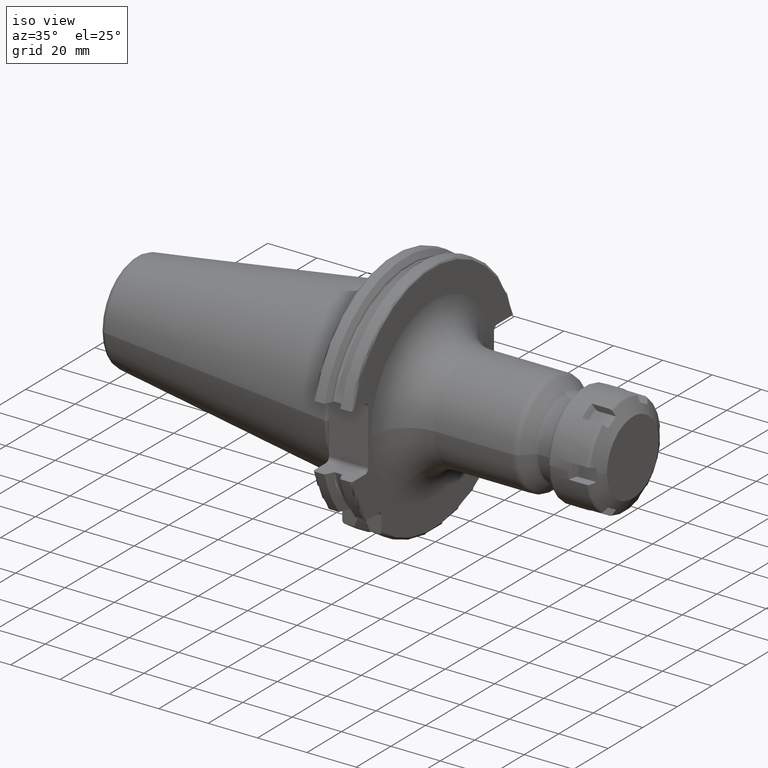
[diagram: clean part render]
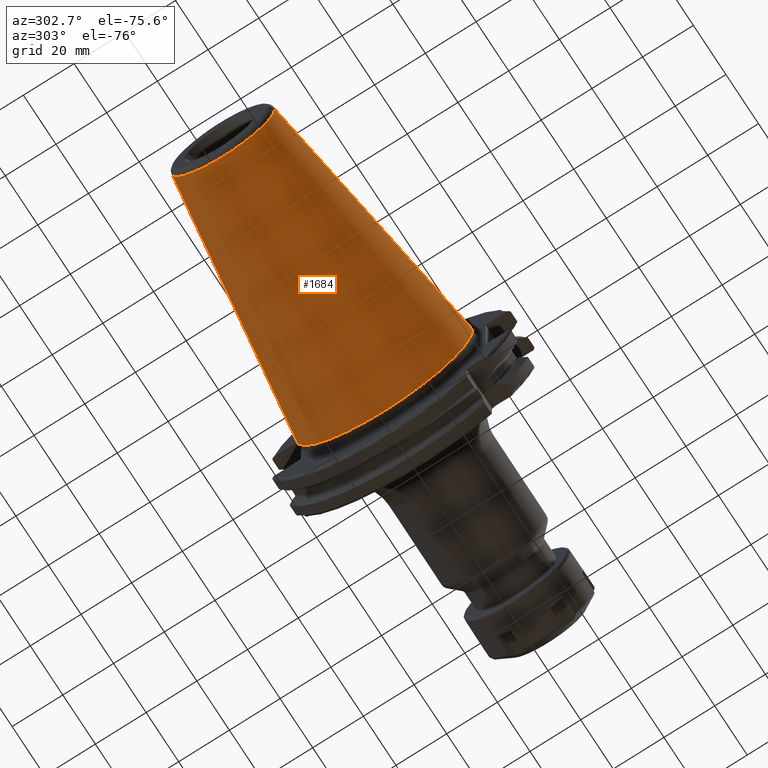
[diagram: tour spotlight — one face highlighted and labeled with its STEP entity id]
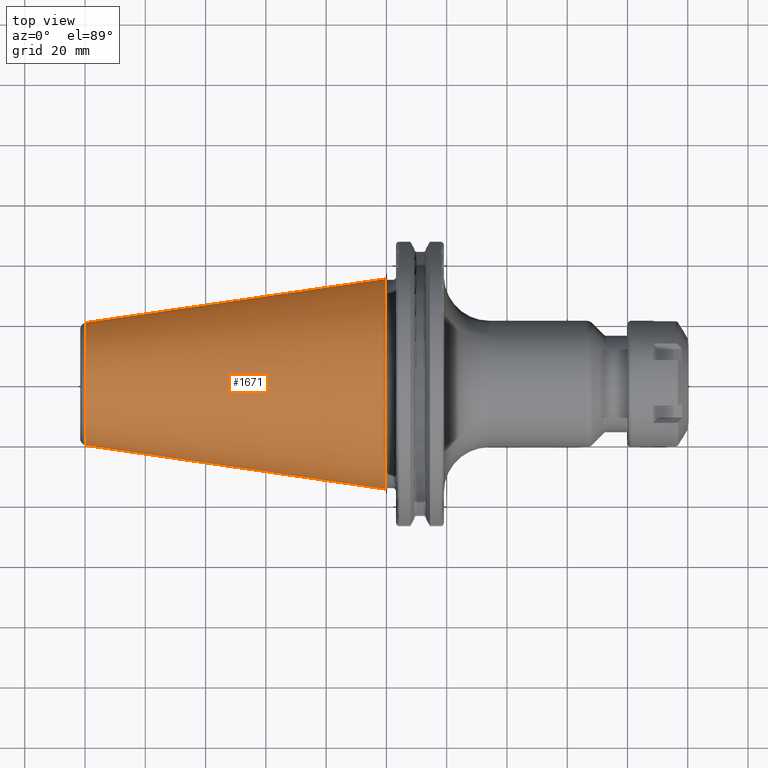
[diagram: tour spotlight — one face highlighted and labeled with its STEP entity id]
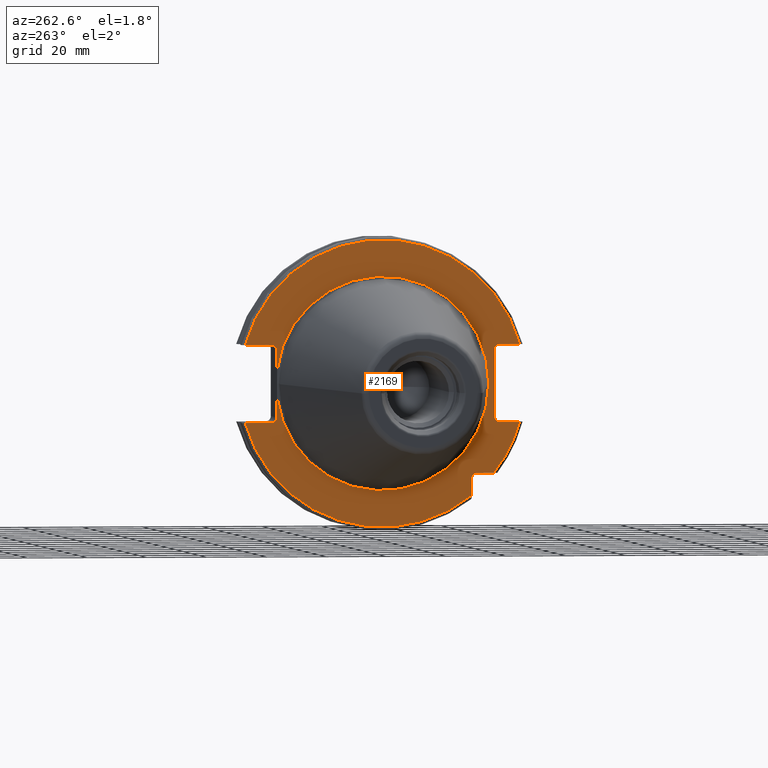
[diagram: tour spotlight — one face highlighted and labeled with its STEP entity id]
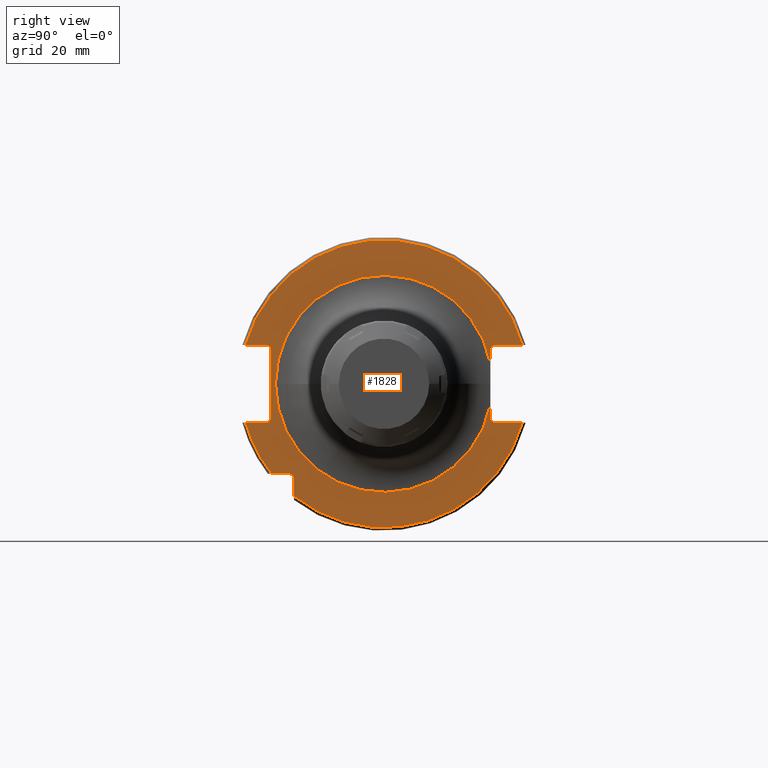
[diagram: tour spotlight — one face highlighted and labeled with its STEP entity id]
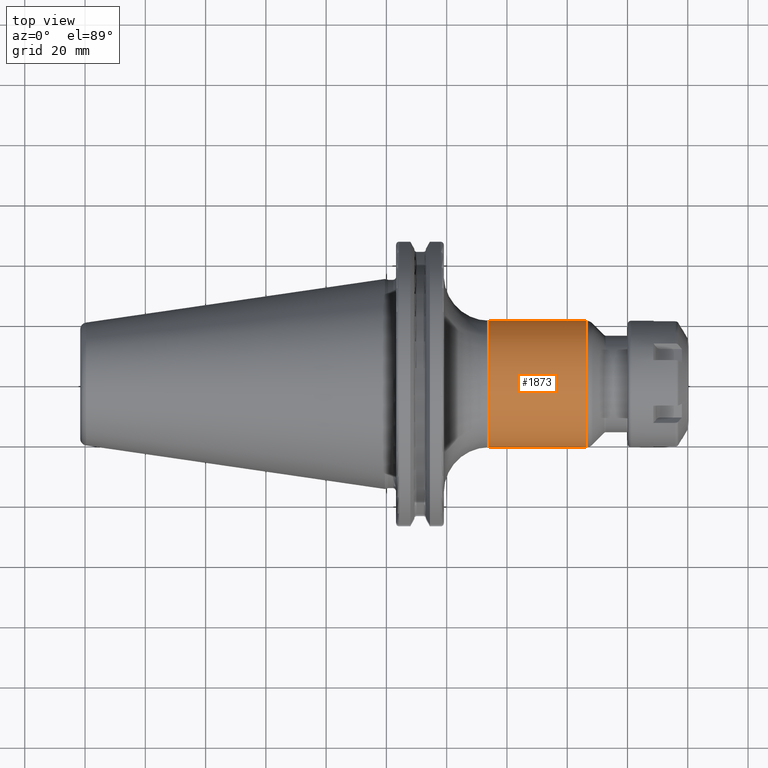
[diagram: tour spotlight — one face highlighted and labeled with its STEP entity id]
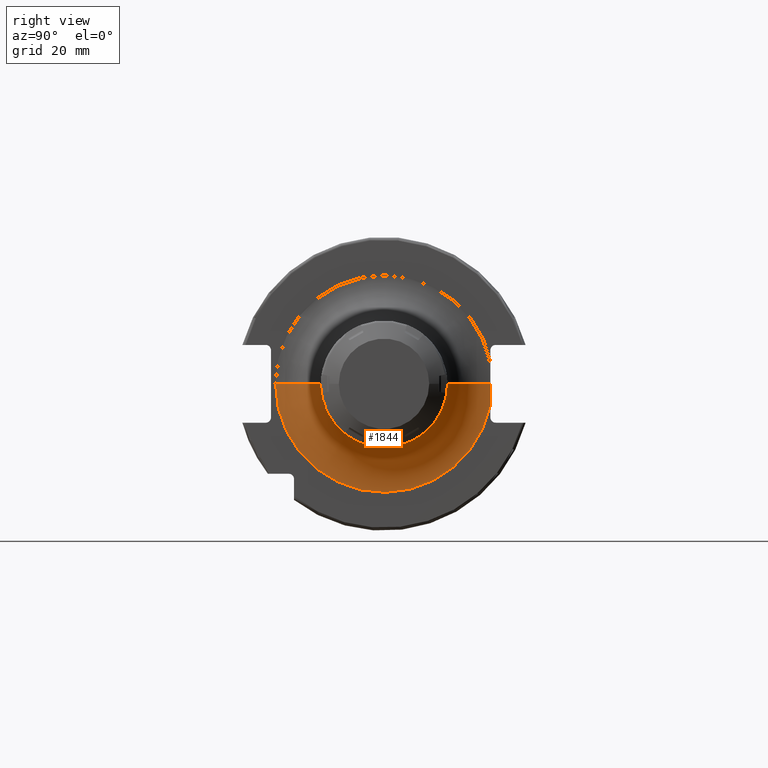
[diagram: tour spotlight — one face highlighted and labeled with its STEP entity id]
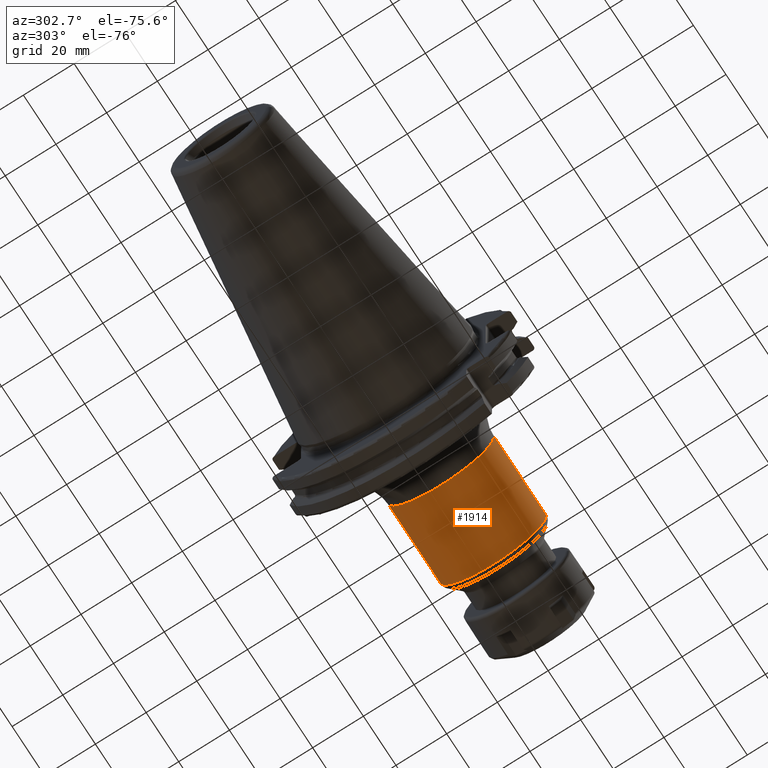
[diagram: tour spotlight — one face highlighted and labeled with its STEP entity id]
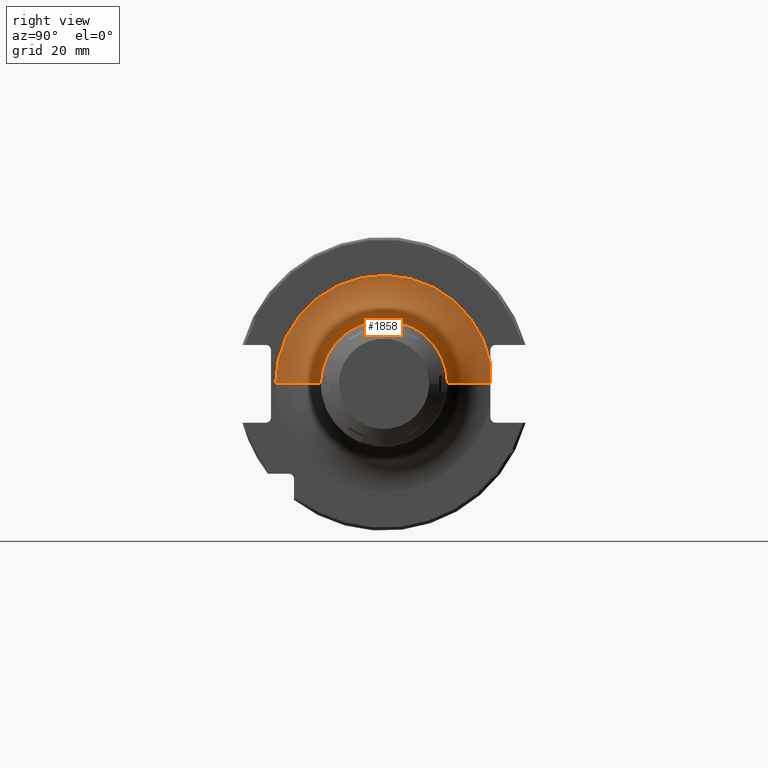
[diagram: tour spotlight — one face highlighted and labeled with its STEP entity id]
A machine part: a face-by-face anatomy tour. The part has 147 B-rep faces; the first image is the clean iso view, then the 8 largest visible faces are spotlighted one at a time (largest first), each with its STEP entity span.

Face 1 — auxiliary view, entity #1684. In plain terms, the highlighted conical surface has half-angle 8.298 deg.
Definition (entity closure, byte-faithful):
#32=CARTESIAN_POINT('',(-9.967471700563E1,0.E0,0.E0));
#33=DIRECTION('',(-1.E0,0.E0,0.E0));
#34=DIRECTION('',(0.E0,1.E0,0.E0));
#35=AXIS2_PLACEMENT_3D('',#32,#33,#34);
#47=DIRECTION('',(-9.895312636440E-1,-1.443186691705E-1,0.E0));
#48=VECTOR('',#47,1.002343617797E2);
#49=CARTESIAN_POINT('',(-4.896823332305E-1,3.485358204157E1,0.E0));
#50=LINE('',#49,#48);
#51=DIRECTION('',(-9.895312636440E-1,1.443186691705E-1,0.E0));
#52=VECTOR('',#51,1.002343617797E2);
#53=CARTESIAN_POINT('',(-4.896823332305E-1,-3.485358204157E1,0.E0));
#54=LINE('',#53,#52);
#55=CARTESIAN_POINT('',(-4.896823332305E-1,0.E0,0.E0));
#56=DIRECTION('',(-1.E0,0.E0,0.E0));
#57=DIRECTION('',(0.E0,1.E0,0.E0));
#58=AXIS2_PLACEMENT_3D('',#55,#56,#57);
#1336=CARTESIAN_POINT('',(-9.967471700563E1,2.038789234437E1,0.E0));
#1338=VERTEX_POINT('',#1336);
#1340=CARTESIAN_POINT('',(-9.967471700563E1,-2.038789234437E1,0.E0));
#1342=VERTEX_POINT('',#1340);
#1404=CARTESIAN_POINT('',(-4.896823332305E-1,3.485358204157E1,0.E0));
#1405=VERTEX_POINT('',#1404);
#1406=CARTESIAN_POINT('',(-4.896823332305E-1,-3.485358204157E1,0.E0));
#1407=VERTEX_POINT('',#1406);
#1672=CARTESIAN_POINT('',(-5.008219966943E1,0.E0,0.E0));
#1673=DIRECTION('',(1.E0,0.E0,0.E0));
#1674=DIRECTION('',(0.E0,-1.E0,0.E0));
#1675=AXIS2_PLACEMENT_3D('',#1672,#1673,#1674);
#1676=CONICAL_SURFACE('',#1675,2.762073719297E1,8.297826828206E0);
#1677=ORIENTED_EDGE('',*,*,#1662,.T.);
#1678=ORIENTED_EDGE('',*,*,#1639,.T.);
#1679=ORIENTED_EDGE('',*,*,#1666,.F.);
#1681=ORIENTED_EDGE('',*,*,#1680,.F.);
#1682=EDGE_LOOP('',(#1677,#1678,#1679,#1681));
#1683=FACE_OUTER_BOUND('',#1682,.F.);
#1684=ADVANCED_FACE('',(#1683),#1676,.T.);
#36=CIRCLE('',#35,2.038789234437E1);
#59=CIRCLE('',#58,3.485358204157E1);
#1639=EDGE_CURVE('',#1338,#1342,#36,.T.);
#1662=EDGE_CURVE('',#1405,#1338,#50,.T.);
#1666=EDGE_CURVE('',#1407,#1342,#54,.T.);
#1680=EDGE_CURVE('',#1405,#1407,#59,.T.);

Face 2 — top view, entity #1671. In plain terms, the highlighted conical surface has half-angle 8.298 deg.
Definition (entity closure, byte-faithful):
#37=CARTESIAN_POINT('',(-9.967471700563E1,0.E0,0.E0));
#38=DIRECTION('',(1.E0,0.E0,0.E0));
#39=DIRECTION('',(0.E0,1.E0,0.E0));
#40=AXIS2_PLACEMENT_3D('',#37,#38,#39);
#42=CARTESIAN_POINT('',(-4.896823332305E-1,0.E0,0.E0));
#43=DIRECTION('',(1.E0,0.E0,0.E0));
#44=DIRECTION('',(0.E0,1.E0,0.E0));
#45=AXIS2_PLACEMENT_3D('',#42,#43,#44);
#47=DIRECTION('',(-9.895312636440E-1,-1.443186691705E-1,0.E0));
#48=VECTOR('',#47,1.002343617797E2);
#49=CARTESIAN_POINT('',(-4.896823332305E-1,3.485358204157E1,0.E0));
#50=LINE('',#49,#48);
#51=DIRECTION('',(-9.895312636440E-1,1.443186691705E-1,0.E0));
#52=VECTOR('',#51,1.002343617797E2);
#53=CARTESIAN_POINT('',(-4.896823332305E-1,-3.485358204157E1,0.E0));
#54=LINE('',#53,#52);
#1336=CARTESIAN_POINT('',(-9.967471700563E1,2.038789234437E1,0.E0));
#1338=VERTEX_POINT('',#1336);
#1340=CARTESIAN_POINT('',(-9.967471700563E1,-2.038789234437E1,0.E0));
#1342=VERTEX_POINT('',#1340);
#1404=CARTESIAN_POINT('',(-4.896823332305E-1,3.485358204157E1,0.E0));
#1405=VERTEX_POINT('',#1404);
#1406=CARTESIAN_POINT('',(-4.896823332305E-1,-3.485358204157E1,0.E0));
#1407=VERTEX_POINT('',#1406);
#1657=CARTESIAN_POINT('',(-5.008219966943E1,0.E0,0.E0));
#1658=DIRECTION('',(1.E0,0.E0,0.E0));
#1659=DIRECTION('',(0.E0,-1.E0,0.E0));
#1660=AXIS2_PLACEMENT_3D('',#1657,#1658,#1659);
#1661=CONICAL_SURFACE('',#1660,2.762073719297E1,8.297826828206E0);
#1663=ORIENTED_EDGE('',*,*,#1662,.F.);
#1665=ORIENTED_EDGE('',*,*,#1664,.T.);
#1667=ORIENTED_EDGE('',*,*,#1666,.T.);
#1668=ORIENTED_EDGE('',*,*,#1650,.F.);
#1669=EDGE_LOOP('',(#1663,#1665,#1667,#1668));
#1670=FACE_OUTER_BOUND('',#1669,.F.);
#1671=ADVANCED_FACE('',(#1670),#1661,.T.);
#41=CIRCLE('',#40,2.038789234437E1);
#46=CIRCLE('',#45,3.485358204157E1);
#1650=EDGE_CURVE('',#1338,#1342,#41,.T.);
#1662=EDGE_CURVE('',#1405,#1338,#50,.T.);
#1664=EDGE_CURVE('',#1405,#1407,#46,.T.);
#1666=EDGE_CURVE('',#1407,#1342,#54,.T.);

Face 3 — auxiliary view, entity #2169. In plain terms, the highlighted planar face has unit normal (1, 0, 0).
Definition (entity closure, byte-faithful):
#105=CARTESIAN_POINT('',(3.2E0,3.53E1,-4.414818795828E0));
#117=CARTESIAN_POINT('',(3.2E0,0.E0,0.E0));
#118=DIRECTION('',(-1.E0,0.E0,0.E0));
#119=DIRECTION('',(0.E0,9.922698524245E-1,-1.240989120402E-1));
#120=AXIS2_PLACEMENT_3D('',#117,#118,#119);
#355=CARTESIAN_POINT('',(3.2E0,3.705E1,-1.115E1));
#356=DIRECTION('',(1.E0,0.E0,0.E0));
#357=DIRECTION('',(0.E0,-1.E0,0.E0));
#358=AXIS2_PLACEMENT_3D('',#355,#356,#357);
#364=DIRECTION('',(0.E0,1.E0,0.E0));
#365=VECTOR('',#364,6.711493733886E0);
#366=CARTESIAN_POINT('',(3.2E0,-4.596149373389E1,1.29E1));
#367=LINE('',#366,#365);
#368=DIRECTION('',(0.E0,0.E0,1.E0));
#369=VECTOR('',#368,2.23E1);
#370=CARTESIAN_POINT('',(3.2E0,-3.75E1,-1.115E1));
#371=LINE('',#370,#369);
#372=DIRECTION('',(0.E0,1.E0,0.E0));
#373=VECTOR('',#372,6.711493733886E0);
#374=CARTESIAN_POINT('',(3.2E0,-4.596149373389E1,-1.29E1));
#375=LINE('',#374,#373);
#376=CARTESIAN_POINT('',(3.2E0,0.E0,0.E0));
#377=DIRECTION('',(-1.E0,0.E0,0.E0));
#378=DIRECTION('',(0.E0,-7.803888060170E-1,-6.252945797329E-1));
#379=AXIS2_PLACEMENT_3D('',#376,#377,#378);
#381=DIRECTION('',(0.E0,-1.E0,0.E0));
#382=VECTOR('',#381,5.653810627237E0);
#383=CARTESIAN_POINT('',(3.2E0,-3.16E1,-2.985E1));
#384=LINE('',#383,#382);
#385=DIRECTION('',(0.E0,0.E0,1.E0));
#386=VECTOR('',#385,5.653810627237E0);
#387=CARTESIAN_POINT('',(3.2E0,-2.985E1,-3.725381062724E1));
#388=LINE('',#387,#386);
#389=CARTESIAN_POINT('',(3.2E0,0.E0,0.E0));
#390=DIRECTION('',(-1.E0,0.E0,0.E0));
#391=DIRECTION('',(0.E0,9.627964123359E-1,-2.702278083268E-1));
#392=AXIS2_PLACEMENT_3D('',#389,#390,#391);
#394=DIRECTION('',(0.E0,-1.E0,0.E0));
#395=VECTOR('',#394,8.911493733886E0);
#396=CARTESIAN_POINT('',(3.2E0,4.596149373389E1,-1.29E1));
#397=LINE('',#396,#395);
#398=DIRECTION('',(0.E0,0.E0,-1.E0));
#399=VECTOR('',#398,6.735181204172E0);
#400=CARTESIAN_POINT('',(3.2E0,3.53E1,-4.414818795828E0));
#401=LINE('',#400,#399);
#402=DIRECTION('',(0.E0,0.E0,-1.E0));
#403=VECTOR('',#402,6.735181204172E0);
#404=CARTESIAN_POINT('',(3.2E0,3.53E1,1.115E1));
#405=LINE('',#404,#403);
#406=DIRECTION('',(0.E0,-1.E0,0.E0));
#407=VECTOR('',#406,8.911493733886E0);
#408=CARTESIAN_POINT('',(3.2E0,4.596149373389E1,1.29E1));
#409=LINE('',#408,#407);
#410=CARTESIAN_POINT('',(3.2E0,0.E0,0.E0));
#411=DIRECTION('',(1.E0,0.E0,0.E0));
#412=DIRECTION('',(0.E0,9.627964123359E-1,2.702278083268E-1));
#413=AXIS2_PLACEMENT_3D('',#410,#411,#412);
#424=CARTESIAN_POINT('',(3.2E0,-3.925E1,1.115E1));
#425=DIRECTION('',(1.E0,0.E0,0.E0));
#426=DIRECTION('',(0.E0,1.E0,0.E0));
#427=AXIS2_PLACEMENT_3D('',#424,#425,#426);
#442=CARTESIAN_POINT('',(3.2E0,-3.925E1,-1.115E1));
#443=DIRECTION('',(1.E0,0.E0,0.E0));
#444=DIRECTION('',(0.E0,0.E0,-1.E0));
#445=AXIS2_PLACEMENT_3D('',#442,#443,#444);
#566=CARTESIAN_POINT('',(3.2E0,4.596149373389E1,-1.29E1));
#601=CARTESIAN_POINT('',(3.2E0,-4.596149373389E1,-1.29E1));
#608=CARTESIAN_POINT('',(3.2E0,-3.725381062724E1,-2.985E1));
#628=CARTESIAN_POINT('',(3.2E0,-3.16E1,-3.16E1));
#629=DIRECTION('',(1.E0,0.E0,0.E0));
#630=DIRECTION('',(0.E0,1.E0,0.E0));
#631=AXIS2_PLACEMENT_3D('',#628,#629,#630);
#713=CARTESIAN_POINT('',(3.2E0,3.705E1,1.115E1));
#714=DIRECTION('',(1.E0,0.E0,0.E0));
#715=DIRECTION('',(0.E0,0.E0,1.E0));
#716=AXIS2_PLACEMENT_3D('',#713,#714,#715);
#799=CARTESIAN_POINT('',(3.2E0,4.596149373389E1,1.29E1));
#806=CARTESIAN_POINT('',(3.2E0,-4.596149373389E1,1.29E1));
#1114=CARTESIAN_POINT('',(3.2E0,3.53E1,4.414818795828E0));
#1125=CARTESIAN_POINT('',(3.2E0,0.E0,0.E0));
#1126=DIRECTION('',(1.E0,0.E0,0.E0));
#1127=DIRECTION('',(0.E0,9.922698524245E-1,1.240989120402E-1));
#1128=AXIS2_PLACEMENT_3D('',#1125,#1126,#1127);
#1348=CARTESIAN_POINT('',(3.2E0,-3.5575E1,0.E0));
#1350=VERTEX_POINT('',#1348);
#1474=VERTEX_POINT('',#1114);
#1476=VERTEX_POINT('',#105);
#1479=VERTEX_POINT('',#799);
#1480=VERTEX_POINT('',#806);
#1483=VERTEX_POINT('',#566);
#1484=VERTEX_POINT('',#601);
#1507=CARTESIAN_POINT('',(3.2E0,-2.985E1,-3.725381062724E1));
#1508=VERTEX_POINT('',#1507);
#1510=CARTESIAN_POINT('',(3.2E0,-3.75E1,-1.115E1));
#1512=VERTEX_POINT('',#1510);
#1514=CARTESIAN_POINT('',(3.2E0,-3.925E1,-1.29E1));
#1516=VERTEX_POINT('',#1514);
#1518=CARTESIAN_POINT('',(3.2E0,-3.925E1,1.29E1));
#1520=VERTEX_POINT('',#1518);
#1522=CARTESIAN_POINT('',(3.2E0,-3.75E1,1.115E1));
#1524=VERTEX_POINT('',#1522);
#1526=CARTESIAN_POINT('',(3.2E0,3.53E1,1.115E1));
#1528=VERTEX_POINT('',#1526);
#1530=CARTESIAN_POINT('',(3.2E0,3.705E1,1.29E1));
#1532=VERTEX_POINT('',#1530);
#1534=CARTESIAN_POINT('',(3.2E0,3.705E1,-1.29E1));
#1536=VERTEX_POINT('',#1534);
#1538=CARTESIAN_POINT('',(3.2E0,3.53E1,-1.115E1));
#1540=VERTEX_POINT('',#1538);
#1545=CARTESIAN_POINT('',(3.2E0,-2.985E1,-3.16E1));
#1546=CARTESIAN_POINT('',(3.2E0,-3.16E1,-2.985E1));
#1547=VERTEX_POINT('',#1545);
#1548=VERTEX_POINT('',#1546);
#1610=VERTEX_POINT('',#608);
#2129=CARTESIAN_POINT('',(3.2E0,0.E0,0.E0));
#2130=DIRECTION('',(1.E0,0.E0,0.E0));
#2131=DIRECTION('',(0.E0,-1.E0,0.E0));
#2132=AXIS2_PLACEMENT_3D('',#2129,#2130,#2131);
#2133=PLANE('',#2132);
#2135=ORIENTED_EDGE('',*,*,#2134,.T.);
#2137=ORIENTED_EDGE('',*,*,#2136,.F.);
#2139=ORIENTED_EDGE('',*,*,#2138,.F.);
#2141=ORIENTED_EDGE('',*,*,#2140,.F.);
#2143=ORIENTED_EDGE('',*,*,#2142,.F.);
#2145=ORIENTED_EDGE('',*,*,#2144,.F.);
#2147=ORIENTED_EDGE('',*,*,#2146,.F.);
#2149=ORIENTED_EDGE('',*,*,#2148,.F.);
#2151=ORIENTED_EDGE('',*,*,#2150,.F.);
#2153=ORIENTED_EDGE('',*,*,#2152,.F.);
#2154=ORIENTED_EDGE('',*,*,#2101,.T.);
#2155=ORIENTED_EDGE('',*,*,#2090,.F.);
#2156=ORIENTED_EDGE('',*,*,#1778,.F.);
#2157=ORIENTED_EDGE('',*,*,#1753,.T.);
#2159=ORIENTED_EDGE('',*,*,#2158,.F.);
#2160=ORIENTED_EDGE('',*,*,#1773,.F.);
#2162=ORIENTED_EDGE('',*,*,#2161,.F.);
#2164=ORIENTED_EDGE('',*,*,#2163,.F.);
#2166=ORIENTED_EDGE('',*,*,#2165,.T.);
#2167=EDGE_LOOP('',(#2135,#2137,#2139,#2141,#2143,#2145,#2147,#2149,#2151,#2153,
#2154,#2155,#2156,#2157,#2159,#2160,#2162,#2164,#2166));
#2168=FACE_OUTER_BOUND('',#2167,.F.);
#2169=ADVANCED_FACE('',(#2168),#2133,.F.);
#121=CIRCLE('',#120,3.5575E1);
#359=CIRCLE('',#358,1.75E0);
#380=CIRCLE('',#379,4.77375E1);
#393=CIRCLE('',#392,4.77375E1);
#414=CIRCLE('',#413,4.77375E1);
#428=CIRCLE('',#427,1.75E0);
#446=CIRCLE('',#445,1.75E0);
#632=CIRCLE('',#631,1.75E0);
#717=CIRCLE('',#716,1.75E0);
#1129=CIRCLE('',#1128,3.5575E1);
#1753=EDGE_CURVE('',#1476,#1350,#121,.T.);
#1773=EDGE_CURVE('',#1528,#1474,#405,.T.);
#1778=EDGE_CURVE('',#1476,#1540,#401,.T.);
#2090=EDGE_CURVE('',#1540,#1536,#359,.T.);
#2101=EDGE_CURVE('',#1483,#1536,#397,.T.);
#2134=EDGE_CURVE('',#1480,#1520,#367,.T.);
#2136=EDGE_CURVE('',#1524,#1520,#428,.T.);
#2138=EDGE_CURVE('',#1512,#1524,#371,.T.);
#2140=EDGE_CURVE('',#1516,#1512,#446,.T.);
#2142=EDGE_CURVE('',#1484,#1516,#375,.T.);
#2144=EDGE_CURVE('',#1610,#1484,#380,.T.);
#2146=EDGE_CURVE('',#1548,#1610,#384,.T.);
#2148=EDGE_CURVE('',#1547,#1548,#632,.T.);
#2150=EDGE_CURVE('',#1508,#1547,#388,.T.);
#2152=EDGE_CURVE('',#1483,#1508,#393,.T.);
#2158=EDGE_CURVE('',#1474,#1350,#1129,.T.);
#2161=EDGE_CURVE('',#1532,#1528,#717,.T.);
#2163=EDGE_CURVE('',#1479,#1532,#409,.T.);
#2165=EDGE_CURVE('',#1479,#1480,#414,.T.);

Face 4 — right view, entity #1828. In plain terms, the highlighted planar face has unit normal (1, 0, 0).
Definition (entity closure, byte-faithful):
#130=CARTESIAN_POINT('',(1.905E1,0.E0,0.E0));
#131=DIRECTION('',(1.E0,0.E0,0.E0));
#132=DIRECTION('',(0.E0,-1.E0,0.E0));
#133=AXIS2_PLACEMENT_3D('',#130,#131,#132);
#135=DIRECTION('',(0.E0,1.506815740124E-6,-9.999999999989E-1));
#136=VECTOR('',#135,4.084752420575E0);
#137=CARTESIAN_POINT('',(1.905E1,3.529999384503E1,-7.065247579429E0));
#138=LINE('',#137,#136);
#139=DIRECTION('',(0.E0,-1.E0,0.E0));
#140=VECTOR('',#139,8.911493733886E0);
#141=CARTESIAN_POINT('',(1.905E1,4.596149373389E1,-1.29E1));
#142=LINE('',#141,#140);
#143=DIRECTION('',(0.E0,0.E0,1.E0));
#144=VECTOR('',#143,5.653810627237E0);
#145=CARTESIAN_POINT('',(1.905E1,-2.985E1,-3.725381062724E1));
#146=LINE('',#145,#144);
#147=DIRECTION('',(0.E0,-1.E0,0.E0));
#148=VECTOR('',#147,5.653810627237E0);
#149=CARTESIAN_POINT('',(1.905E1,-3.16E1,-2.985E1));
#150=LINE('',#149,#148);
#151=DIRECTION('',(0.E0,1.E0,0.E0));
#152=VECTOR('',#151,6.711493733886E0);
#153=CARTESIAN_POINT('',(1.905E1,-4.596149373389E1,-1.29E1));
#154=LINE('',#153,#152);
#155=DIRECTION('',(0.E0,0.E0,1.E0));
#156=VECTOR('',#155,2.23E1);
#157=CARTESIAN_POINT('',(1.905E1,-3.75E1,-1.115E1));
#158=LINE('',#157,#156);
#159=DIRECTION('',(0.E0,1.E0,0.E0));
#160=VECTOR('',#159,6.711493733886E0);
#161=CARTESIAN_POINT('',(1.905E1,-4.596149373389E1,1.29E1));
#162=LINE('',#161,#160);
#163=DIRECTION('',(0.E0,-1.E0,0.E0));
#164=VECTOR('',#163,8.911493733886E0);
#165=CARTESIAN_POINT('',(1.905E1,4.596149373389E1,1.29E1));
#166=LINE('',#165,#164);
#167=DIRECTION('',(0.E0,7.438791532541E-7,-9.999999999997E-1));
#168=VECTOR('',#167,4.085117833740E0);
#169=CARTESIAN_POINT('',(1.905E1,3.53E1,1.115E1));
#170=LINE('',#169,#168);
#171=CARTESIAN_POINT('',(1.905E1,0.E0,0.E0));
#172=DIRECTION('',(1.E0,0.E0,0.E0));
#173=DIRECTION('',(0.E0,9.805524066160E-1,1.962574275782E-1));
#174=AXIS2_PLACEMENT_3D('',#171,#172,#173);
#176=CARTESIAN_POINT('',(1.905E1,3.529999384503E1,-7.065247579429E0));
#350=CARTESIAN_POINT('',(1.905E1,3.705E1,-1.115E1));
#351=DIRECTION('',(-1.E0,0.E0,0.E0));
#352=DIRECTION('',(0.E0,0.E0,-1.E0));
#353=AXIS2_PLACEMENT_3D('',#350,#351,#352);
#419=CARTESIAN_POINT('',(1.905E1,-3.925E1,1.115E1));
#420=DIRECTION('',(-1.E0,0.E0,0.E0));
#421=DIRECTION('',(0.E0,0.E0,1.E0));
#422=AXIS2_PLACEMENT_3D('',#419,#420,#421);
#437=CARTESIAN_POINT('',(1.905E1,-3.925E1,-1.115E1));
#438=DIRECTION('',(-1.E0,0.E0,0.E0));
#439=DIRECTION('',(0.E0,1.E0,0.E0));
#440=AXIS2_PLACEMENT_3D('',#437,#438,#439);
#460=CARTESIAN_POINT('',(1.905E1,4.596149373389E1,-1.29E1));
#472=CARTESIAN_POINT('',(1.905E1,0.E0,0.E0));
#473=DIRECTION('',(-1.E0,0.E0,0.E0));
#474=DIRECTION('',(0.E0,9.627964123359E-1,-2.702278083268E-1));
#475=AXIS2_PLACEMENT_3D('',#472,#473,#474);
#477=CARTESIAN_POINT('',(1.905E1,-4.596149373389E1,-1.29E1));
#488=CARTESIAN_POINT('',(1.905E1,0.E0,0.E0));
#489=DIRECTION('',(-1.E0,0.E0,0.E0));
#490=DIRECTION('',(0.E0,-7.803888060170E-1,-6.252945797329E-1));
#491=AXIS2_PLACEMENT_3D('',#488,#489,#490);
#502=CARTESIAN_POINT('',(1.905E1,-3.725381062724E1,-2.985E1));
#623=CARTESIAN_POINT('',(1.905E1,-3.16E1,-3.16E1));
#624=DIRECTION('',(-1.E0,0.E0,0.E0));
#625=DIRECTION('',(0.E0,0.E0,1.E0));
#626=AXIS2_PLACEMENT_3D('',#623,#624,#625);
#708=CARTESIAN_POINT('',(1.905E1,3.705E1,1.115E1));
#709=DIRECTION('',(-1.E0,0.E0,0.E0));
#710=DIRECTION('',(0.E0,-1.E0,0.E0));
#711=AXIS2_PLACEMENT_3D('',#708,#709,#710);
#718=CARTESIAN_POINT('',(1.905E1,4.596149373389E1,1.29E1));
#729=CARTESIAN_POINT('',(1.905E1,0.E0,0.E0));
#730=DIRECTION('',(1.E0,0.E0,0.E0));
#731=DIRECTION('',(0.E0,9.627964123359E-1,2.702278083268E-1));
#732=AXIS2_PLACEMENT_3D('',#729,#730,#731);
#743=CARTESIAN_POINT('',(1.905E1,-4.596149373389E1,1.29E1));
#1477=VERTEX_POINT('',#718);
#1478=VERTEX_POINT('',#743);
#1481=VERTEX_POINT('',#460);
#1482=VERTEX_POINT('',#477);
#1501=CARTESIAN_POINT('',(1.905E1,-2.985E1,-3.725381062724E1));
#1502=VERTEX_POINT('',#1501);
#1509=CARTESIAN_POINT('',(1.905E1,-3.75E1,-1.115E1));
#1511=VERTEX_POINT('',#1509);
#1513=CARTESIAN_POINT('',(1.905E1,-3.925E1,-1.29E1));
#1515=VERTEX_POINT('',#1513);
#1517=CARTESIAN_POINT('',(1.905E1,-3.925E1,1.29E1));
#1519=VERTEX_POINT('',#1517);
#1521=CARTESIAN_POINT('',(1.905E1,-3.75E1,1.115E1));
#1523=VERTEX_POINT('',#1521);
#1525=CARTESIAN_POINT('',(1.905E1,3.53E1,1.115E1));
#1527=VERTEX_POINT('',#1525);
#1529=CARTESIAN_POINT('',(1.905E1,3.705E1,1.29E1));
#1531=VERTEX_POINT('',#1529);
#1533=CARTESIAN_POINT('',(1.905E1,3.705E1,-1.29E1));
#1535=VERTEX_POINT('',#1533);
#1537=CARTESIAN_POINT('',(1.905E1,3.53E1,-1.115E1));
#1539=VERTEX_POINT('',#1537);
#1541=CARTESIAN_POINT('',(1.905E1,-3.16E1,-2.985E1));
#1542=CARTESIAN_POINT('',(1.905E1,-2.985E1,-3.16E1));
#1543=VERTEX_POINT('',#1541);
#1544=VERTEX_POINT('',#1542);
#1569=VERTEX_POINT('',#176);
#1570=CARTESIAN_POINT('',(1.905E1,-3.6E1,0.E0));
#1571=VERTEX_POINT('',#1570);
#1574=CARTESIAN_POINT('',(1.905E1,3.529988663817E1,7.065267392817E0));
#1575=VERTEX_POINT('',#1574);
#1609=VERTEX_POINT('',#502);
#1785=CARTESIAN_POINT('',(1.905E1,0.E0,0.E0));
#1786=DIRECTION('',(1.E0,0.E0,0.E0));
#1787=DIRECTION('',(0.E0,-1.E0,0.E0));
#1788=AXIS2_PLACEMENT_3D('',#1785,#1786,#1787);
#1789=PLANE('',#1788);
#1791=ORIENTED_EDGE('',*,*,#1790,.T.);
#1792=ORIENTED_EDGE('',*,*,#1763,.T.);
#1794=ORIENTED_EDGE('',*,*,#1793,.F.);
#1796=ORIENTED_EDGE('',*,*,#1795,.F.);
#1798=ORIENTED_EDGE('',*,*,#1797,.T.);
#1800=ORIENTED_EDGE('',*,*,#1799,.T.);
#1802=ORIENTED_EDGE('',*,*,#1801,.F.);
#1804=ORIENTED_EDGE('',*,*,#1803,.T.);
#1806=ORIENTED_EDGE('',*,*,#1805,.T.);
#1808=ORIENTED_EDGE('',*,*,#1807,.T.);
#1810=ORIENTED_EDGE('',*,*,#1809,.F.);
#1812=ORIENTED_EDGE('',*,*,#1811,.T.);
#1814=ORIENTED_EDGE('',*,*,#1813,.F.);
#1816=ORIENTED_EDGE('',*,*,#1815,.F.);
#1818=ORIENTED_EDGE('',*,*,#1817,.F.);
#1820=ORIENTED_EDGE('',*,*,#1819,.T.);
#1822=ORIENTED_EDGE('',*,*,#1821,.F.);
#1823=ORIENTED_EDGE('',*,*,#1769,.T.);
#1825=ORIENTED_EDGE('',*,*,#1824,.T.);
#1826=EDGE_LOOP('',(#1791,#1792,#1794,#1796,#1798,#1800,#1802,#1804,#1806,#1808,
#1810,#1812,#1814,#1816,#1818,#1820,#1822,#1823,#1825));
#1827=FACE_OUTER_BOUND('',#1826,.F.);
#1828=ADVANCED_FACE('',(#1827),#1789,.T.);
#134=CIRCLE('',#133,3.6E1);
#175=CIRCLE('',#174,3.6E1);
#354=CIRCLE('',#353,1.75E0);
#423=CIRCLE('',#422,1.75E0);
#441=CIRCLE('',#440,1.75E0);
#476=CIRCLE('',#475,4.77375E1);
#492=CIRCLE('',#491,4.77375E1);
#627=CIRCLE('',#626,1.75E0);
#712=CIRCLE('',#711,1.75E0);
#733=CIRCLE('',#732,4.77375E1);
#1763=EDGE_CURVE('',#1569,#1539,#138,.T.);
#1769=EDGE_CURVE('',#1527,#1575,#170,.T.);
#1790=EDGE_CURVE('',#1571,#1569,#134,.T.);
#1793=EDGE_CURVE('',#1535,#1539,#354,.T.);
#1795=EDGE_CURVE('',#1481,#1535,#142,.T.);
#1797=EDGE_CURVE('',#1481,#1502,#476,.T.);
#1799=EDGE_CURVE('',#1502,#1544,#146,.T.);
#1801=EDGE_CURVE('',#1543,#1544,#627,.T.);
#1803=EDGE_CURVE('',#1543,#1609,#150,.T.);
#1805=EDGE_CURVE('',#1609,#1482,#492,.T.);
#1807=EDGE_CURVE('',#1482,#1515,#154,.T.);
#1809=EDGE_CURVE('',#1511,#1515,#441,.T.);
#1811=EDGE_CURVE('',#1511,#1523,#158,.T.);
#1813=EDGE_CURVE('',#1519,#1523,#423,.T.);
#1815=EDGE_CURVE('',#1478,#1519,#162,.T.);
#1817=EDGE_CURVE('',#1477,#1478,#733,.T.);
#1819=EDGE_CURVE('',#1477,#1531,#166,.T.);
#1821=EDGE_CURVE('',#1527,#1531,#712,.T.);
#1824=EDGE_CURVE('',#1575,#1571,#175,.T.);

Face 5 — top view, entity #1873. In plain terms, the highlighted cylindrical surface (partial cylindrical patch) has radius 21 mm, axis along (1, 0, 0).
Definition (entity closure, byte-faithful):
#200=CARTESIAN_POINT('',(6.625735931288E1,0.E0,0.E0));
#201=DIRECTION('',(-1.E0,0.E0,0.E0));
#202=DIRECTION('',(0.E0,-1.E0,0.E0));
#203=AXIS2_PLACEMENT_3D('',#200,#201,#202);
#205=CARTESIAN_POINT('',(3.405E1,0.E0,0.E0));
#206=DIRECTION('',(1.E0,0.E0,0.E0));
#207=DIRECTION('',(0.E0,1.E0,0.E0));
#208=AXIS2_PLACEMENT_3D('',#205,#206,#207);
#225=DIRECTION('',(-9.999999998190E-1,-5.550691659703E-10,1.902416739635E-5));
#226=VECTOR('',#225,3.220735931871E1);
#227=CARTESIAN_POINT('',(6.625735931288E1,2.1E1,-3.075391922278E-12));
#228=LINE('',#227,#226);
#234=DIRECTION('',(-1.E0,0.E0,-3.932407662935E-13));
#235=VECTOR('',#234,3.220735931288E1);
#236=CARTESIAN_POINT('',(6.625735931288E1,-2.1E1,3.074743979257E-12));
#237=LINE('',#236,#235);
#1566=CARTESIAN_POINT('',(3.405E1,2.099999996467E1,1.218109489520E-3));
#1568=VERTEX_POINT('',#1566);
#1572=CARTESIAN_POINT('',(3.405E1,-2.1E1,0.E0));
#1573=VERTEX_POINT('',#1572);
#1584=CARTESIAN_POINT('',(6.625735931288E1,2.1E1,0.E0));
#1585=CARTESIAN_POINT('',(6.625735931288E1,-2.1E1,0.E0));
#1586=VERTEX_POINT('',#1584);
#1587=VERTEX_POINT('',#1585);
#1859=CARTESIAN_POINT('',(1.56025E1,0.E0,0.E0));
#1860=DIRECTION('',(1.E0,0.E0,0.E0));
#1861=DIRECTION('',(0.E0,-1.E0,0.E0));
#1862=AXIS2_PLACEMENT_3D('',#1859,#1860,#1861);
#1863=CYLINDRICAL_SURFACE('',#1862,2.1E1);
#1865=ORIENTED_EDGE('',*,*,#1864,.F.);
#1867=ORIENTED_EDGE('',*,*,#1866,.T.);
#1868=ORIENTED_EDGE('',*,*,#1851,.F.);
#1870=ORIENTED_EDGE('',*,*,#1869,.F.);
#1871=EDGE_LOOP('',(#1865,#1867,#1868,#1870));
#1872=FACE_OUTER_BOUND('',#1871,.F.);
#1873=ADVANCED_FACE('',(#1872),#1863,.T.);
#204=CIRCLE('',#203,2.1E1);
#209=CIRCLE('',#208,2.1E1);
#1851=EDGE_CURVE('',#1568,#1573,#209,.T.);
#1864=EDGE_CURVE('',#1587,#1586,#204,.T.);
#1866=EDGE_CURVE('',#1587,#1573,#237,.T.);
#1869=EDGE_CURVE('',#1586,#1568,#228,.T.);

Face 6 — right view, entity #1844. In plain terms, the highlighted toroidal blend (fillet) surface has major radius 36 mm and minor (blend) radius 15 mm.
Definition (entity closure, byte-faithful):
#130=CARTESIAN_POINT('',(1.905E1,0.E0,0.E0));
#131=DIRECTION('',(1.E0,0.E0,0.E0));
#132=DIRECTION('',(0.E0,-1.E0,0.E0));
#133=AXIS2_PLACEMENT_3D('',#130,#131,#132);
#176=CARTESIAN_POINT('',(1.905E1,3.529999384503E1,-7.065247579429E0));
#177=CARTESIAN_POINT('',(1.905E1,3.529999384503E1,-6.283124569416E0));
#178=CARTESIAN_POINT('',(1.905461054928E1,3.530000287232E1,-4.716022604778E0));
#179=CARTESIAN_POINT('',(1.906374229396E1,3.529999917934E1,-2.359977054159E0));
#180=CARTESIAN_POINT('',(1.906634436800E1,3.53E1,-7.858724559751E-1));
#181=CARTESIAN_POINT('',(1.906634223285E1,3.53E1,2.047584050112E-3));
#183=CARTESIAN_POINT('',(3.405E1,-3.6E1,4.802491737621E-12));
#184=DIRECTION('',(0.E0,-1.334037047496E-13,-1.E0));
#185=DIRECTION('',(-1.E0,0.E0,0.E0));
#186=AXIS2_PLACEMENT_3D('',#183,#184,#185);
#188=CARTESIAN_POINT('',(3.405E1,3.599999993944E1,2.088187696320E-3));
#189=DIRECTION('',(0.E0,-5.800521378666E-5,9.999999983177E-1));
#190=DIRECTION('',(-9.989105178101E-1,-4.666666262914E-2,-2.706909747067E-6));
#191=AXIS2_PLACEMENT_3D('',#188,#189,#190);
#229=CARTESIAN_POINT('',(3.405E1,0.E0,0.E0));
#230=DIRECTION('',(1.E0,0.E0,0.E0));
#231=DIRECTION('',(0.E0,-1.E0,0.E0));
#232=AXIS2_PLACEMENT_3D('',#229,#230,#231);
#1565=CARTESIAN_POINT('',(1.906634223285E1,3.53E1,2.047584050114E-3));
#1566=CARTESIAN_POINT('',(3.405E1,2.099999996467E1,1.218109489520E-3));
#1567=VERTEX_POINT('',#1565);
#1568=VERTEX_POINT('',#1566);
#1569=VERTEX_POINT('',#176);
#1570=CARTESIAN_POINT('',(1.905E1,-3.6E1,0.E0));
#1571=VERTEX_POINT('',#1570);
#1572=CARTESIAN_POINT('',(3.405E1,-2.1E1,0.E0));
#1573=VERTEX_POINT('',#1572);
#1829=CARTESIAN_POINT('',(3.405E1,0.E0,0.E0));
#1830=DIRECTION('',(1.E0,0.E0,0.E0));
#1831=DIRECTION('',(0.E0,-9.999731921857E-1,7.322220282676E-3));
#1832=AXIS2_PLACEMENT_3D('',#1829,#1830,#1831);
#1833=TOROIDAL_SURFACE('',#1832,3.6E1,1.5E1);
#1835=ORIENTED_EDGE('',*,*,#1834,.F.);
#1836=ORIENTED_EDGE('',*,*,#1765,.F.);
#1837=ORIENTED_EDGE('',*,*,#1790,.F.);
#1839=ORIENTED_EDGE('',*,*,#1838,.T.);
#1841=ORIENTED_EDGE('',*,*,#1840,.T.);
#1842=EDGE_LOOP('',(#1835,#1836,#1837,#1839,#1841));
#1843=FACE_OUTER_BOUND('',#1842,.F.);
#1844=ADVANCED_FACE('',(#1843),#1833,.F.);
#134=CIRCLE('',#133,3.6E1);
#182=B_SPLINE_CURVE_WITH_KNOTS('',3,(#176,#177,#178,#179,#180,#181),
.UNSPECIFIED.,.F.,.F.,(4,1,1,4),(0.E0,3.333333333333E-1,6.666666666667E-1,1.E0),
.UNSPECIFIED.);
#187=CIRCLE('',#186,1.5E1);
#192=CIRCLE('',#191,1.5E1);
#233=CIRCLE('',#232,2.1E1);
#1765=EDGE_CURVE('',#1569,#1567,#182,.T.);
#1790=EDGE_CURVE('',#1571,#1569,#134,.T.);
#1834=EDGE_CURVE('',#1567,#1568,#192,.T.);
#1838=EDGE_CURVE('',#1571,#1573,#187,.T.);
#1840=EDGE_CURVE('',#1573,#1568,#233,.T.);

Face 7 — auxiliary view, entity #1914. In plain terms, the highlighted cylindrical surface (partial cylindrical patch) has radius 21 mm, axis along (1, 0, 0).
Definition (entity closure, byte-faithful):
#220=CARTESIAN_POINT('',(6.625735931288E1,0.E0,0.E0));
#221=DIRECTION('',(-1.E0,0.E0,0.E0));
#222=DIRECTION('',(0.E0,1.E0,0.E0));
#223=AXIS2_PLACEMENT_3D('',#220,#221,#222);
#225=DIRECTION('',(-9.999999998190E-1,-5.550691659703E-10,1.902416739635E-5));
#226=VECTOR('',#225,3.220735931871E1);
#227=CARTESIAN_POINT('',(6.625735931288E1,2.1E1,-3.075391922278E-12));
#228=LINE('',#227,#226);
#229=CARTESIAN_POINT('',(3.405E1,0.E0,0.E0));
#230=DIRECTION('',(1.E0,0.E0,0.E0));
#231=DIRECTION('',(0.E0,-1.E0,0.E0));
#232=AXIS2_PLACEMENT_3D('',#229,#230,#231);
#234=DIRECTION('',(-1.E0,0.E0,-3.932407662935E-13));
#235=VECTOR('',#234,3.220735931288E1);
#236=CARTESIAN_POINT('',(6.625735931288E1,-2.1E1,3.074743979257E-12));
#237=LINE('',#236,#235);
#1566=CARTESIAN_POINT('',(3.405E1,2.099999996467E1,1.218109489520E-3));
#1568=VERTEX_POINT('',#1566);
#1572=CARTESIAN_POINT('',(3.405E1,-2.1E1,0.E0));
#1573=VERTEX_POINT('',#1572);
#1584=CARTESIAN_POINT('',(6.625735931288E1,2.1E1,0.E0));
#1585=CARTESIAN_POINT('',(6.625735931288E1,-2.1E1,0.E0));
#1586=VERTEX_POINT('',#1584);
#1587=VERTEX_POINT('',#1585);
#1903=CARTESIAN_POINT('',(1.56025E1,0.E0,0.E0));
#1904=DIRECTION('',(1.E0,0.E0,0.E0));
#1905=DIRECTION('',(0.E0,-1.E0,0.E0));
#1906=AXIS2_PLACEMENT_3D('',#1903,#1904,#1905);
#1907=CYLINDRICAL_SURFACE('',#1906,2.1E1);
#1908=ORIENTED_EDGE('',*,*,#1894,.F.);
#1909=ORIENTED_EDGE('',*,*,#1869,.T.);
#1910=ORIENTED_EDGE('',*,*,#1840,.F.);
#1911=ORIENTED_EDGE('',*,*,#1866,.F.);
#1912=EDGE_LOOP('',(#1908,#1909,#1910,#1911));
#1913=FACE_OUTER_BOUND('',#1912,.F.);
#1914=ADVANCED_FACE('',(#1913),#1907,.T.);
#224=CIRCLE('',#223,2.1E1);
#233=CIRCLE('',#232,2.1E1);
#1840=EDGE_CURVE('',#1573,#1568,#233,.T.);
#1866=EDGE_CURVE('',#1587,#1573,#237,.T.);
#1869=EDGE_CURVE('',#1586,#1568,#228,.T.);
#1894=EDGE_CURVE('',#1586,#1587,#224,.T.);

Face 8 — right view, entity #1858. In plain terms, the highlighted toroidal blend (fillet) surface has major radius 36 mm and minor (blend) radius 15 mm.
Definition (entity closure, byte-faithful):
#171=CARTESIAN_POINT('',(1.905E1,0.E0,0.E0));
#172=DIRECTION('',(1.E0,0.E0,0.E0));
#173=DIRECTION('',(0.E0,9.805524066160E-1,1.962574275782E-1));
#174=AXIS2_PLACEMENT_3D('',#171,#172,#173);
#183=CARTESIAN_POINT('',(3.405E1,-3.6E1,4.802491737621E-12));
#184=DIRECTION('',(0.E0,-1.334037047496E-13,-1.E0));
#185=DIRECTION('',(-1.E0,0.E0,0.E0));
#186=AXIS2_PLACEMENT_3D('',#183,#184,#185);
#188=CARTESIAN_POINT('',(3.405E1,3.599999993944E1,2.088187696320E-3));
#189=DIRECTION('',(0.E0,-5.800521378666E-5,9.999999983177E-1));
#190=DIRECTION('',(-9.989105178101E-1,-4.666666262914E-2,-2.706909747067E-6));
#191=AXIS2_PLACEMENT_3D('',#188,#189,#190);
#193=CARTESIAN_POINT('',(1.906634223285E1,3.53E1,2.047584050112E-3));
#194=CARTESIAN_POINT('',(1.906634009796E1,3.53E1,7.898685322298E-1));
#195=CARTESIAN_POINT('',(1.906373026992E1,3.530000040518E1,2.363488085515E0));
#196=CARTESIAN_POINT('',(1.905460213416E1,3.529999858188E1,4.718315360110E0));
#197=CARTESIAN_POINT('',(1.905E1,3.530000303883E1,6.283538318702E0));
#198=CARTESIAN_POINT('',(1.905E1,3.530000303883E1,7.064882166261E0));
#205=CARTESIAN_POINT('',(3.405E1,0.E0,0.E0));
#206=DIRECTION('',(1.E0,0.E0,0.E0));
#207=DIRECTION('',(0.E0,1.E0,0.E0));
#208=AXIS2_PLACEMENT_3D('',#205,#206,#207);
#1565=CARTESIAN_POINT('',(1.906634223285E1,3.53E1,2.047584050114E-3));
#1566=CARTESIAN_POINT('',(3.405E1,2.099999996467E1,1.218109489520E-3));
#1567=VERTEX_POINT('',#1565);
#1568=VERTEX_POINT('',#1566);
#1570=CARTESIAN_POINT('',(1.905E1,-3.6E1,0.E0));
#1571=VERTEX_POINT('',#1570);
#1572=CARTESIAN_POINT('',(3.405E1,-2.1E1,0.E0));
#1573=VERTEX_POINT('',#1572);
#1574=CARTESIAN_POINT('',(1.905E1,3.529988663817E1,7.065267392817E0));
#1575=VERTEX_POINT('',#1574);
#1845=CARTESIAN_POINT('',(3.405E1,0.E0,0.E0));
#1846=DIRECTION('',(1.E0,0.E0,0.E0));
#1847=DIRECTION('',(0.E0,1.485959642860E-3,-9.999988959614E-1));
#1848=AXIS2_PLACEMENT_3D('',#1845,#1846,#1847);
#1849=TOROIDAL_SURFACE('',#1848,3.6E1,1.5E1);
#1850=ORIENTED_EDGE('',*,*,#1834,.T.);
#1852=ORIENTED_EDGE('',*,*,#1851,.T.);
#1853=ORIENTED_EDGE('',*,*,#1838,.F.);
#1854=ORIENTED_EDGE('',*,*,#1824,.F.);
#1855=ORIENTED_EDGE('',*,*,#1767,.F.);
#1856=EDGE_LOOP('',(#1850,#1852,#1853,#1854,#1855));
#1857=FACE_OUTER_BOUND('',#1856,.F.);
#1858=ADVANCED_FACE('',(#1857),#1849,.F.);
#175=CIRCLE('',#174,3.6E1);
#187=CIRCLE('',#186,1.5E1);
#192=CIRCLE('',#191,1.5E1);
#199=B_SPLINE_CURVE_WITH_KNOTS('',3,(#193,#194,#195,#196,#197,#198),
.UNSPECIFIED.,.F.,.F.,(4,1,1,4),(0.E0,3.333333333333E-1,6.666666666667E-1,1.E0),
.UNSPECIFIED.);
#209=CIRCLE('',#208,2.1E1);
#1767=EDGE_CURVE('',#1567,#1575,#199,.T.);
#1824=EDGE_CURVE('',#1575,#1571,#175,.T.);
#1834=EDGE_CURVE('',#1567,#1568,#192,.T.);
#1838=EDGE_CURVE('',#1571,#1573,#187,.T.);
#1851=EDGE_CURVE('',#1568,#1573,#209,.T.);